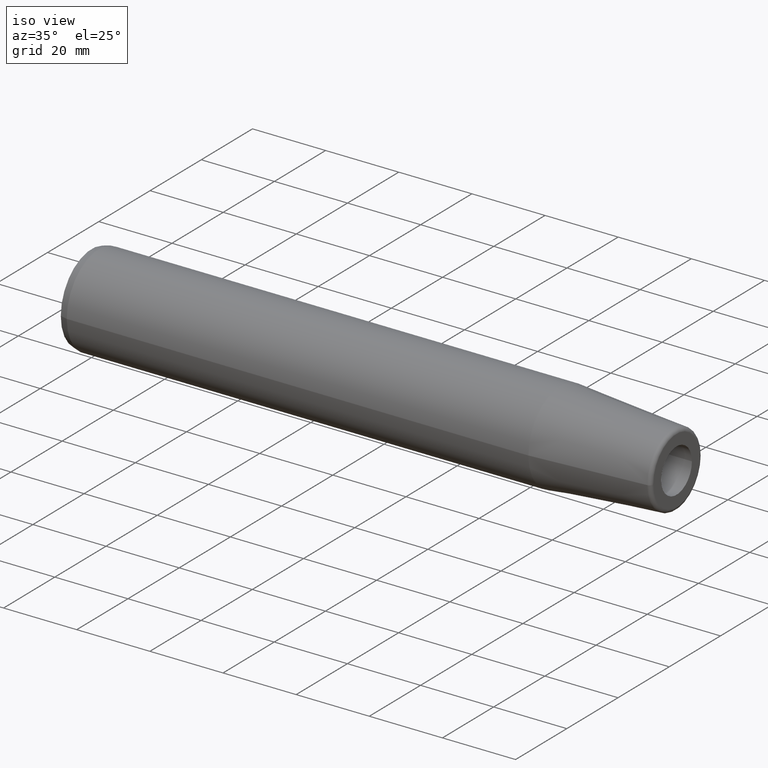
[diagram: clean part render]
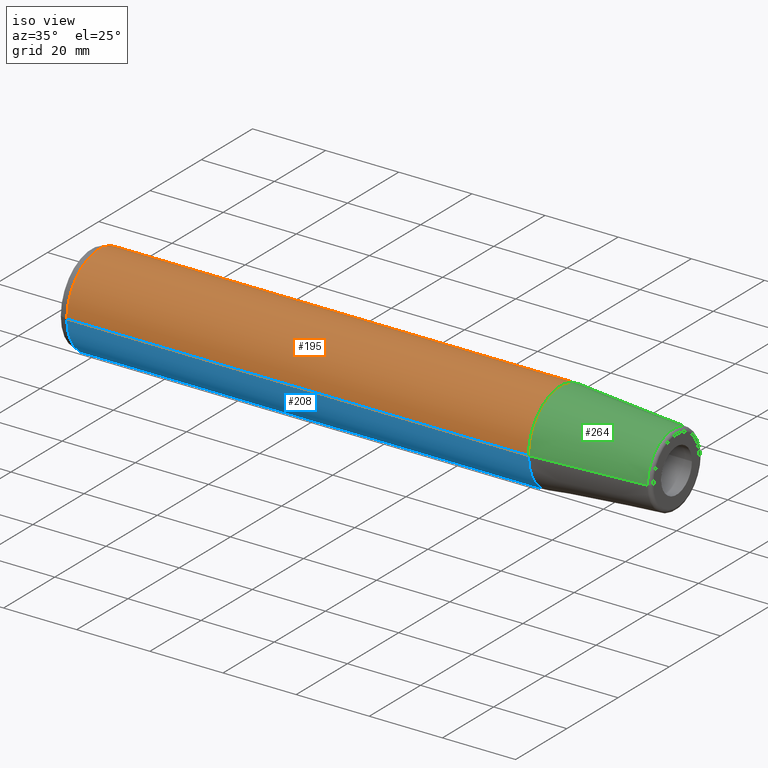
[diagram: same view with three faces highlighted in distinct colors, each labeled with its STEP entity id]
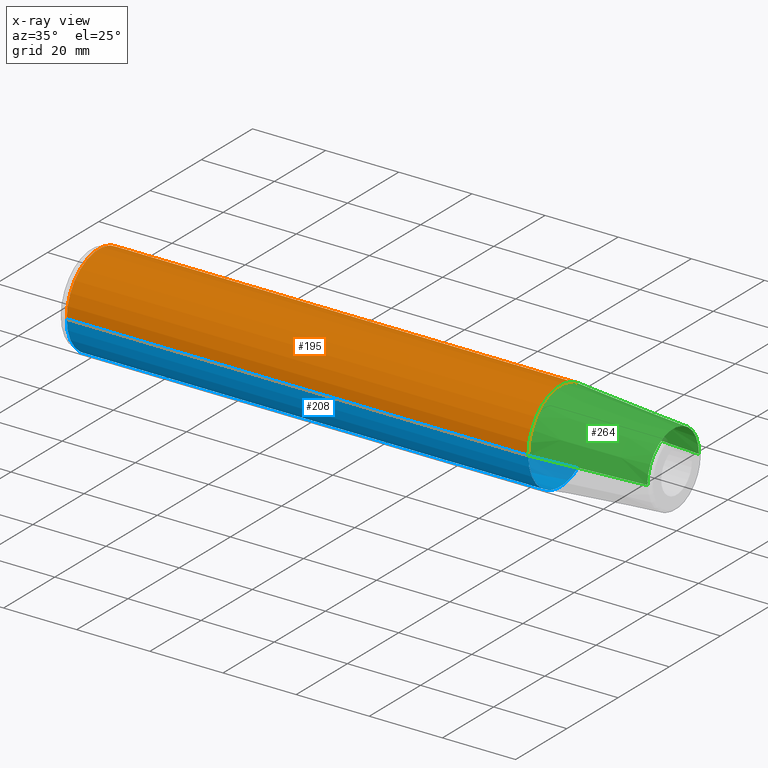
[diagram: x-ray of the same camera — body ghosted, the three highlighted faces saturated]
A machine part, iso view with three faces highlighted in distinct colors.
The next image is the same camera in x-ray (body ghosted, the three faces saturated) — at least one of them is partly hidden behind the body in this view.
Their STEP definitions:

[orange] entity #195 — the highlighted cylindrical surface (partial cylindrical patch) has radius 12.5 mm, axis along (1, 0, 0).
#19=CARTESIAN_POINT('',(2.E0,0.E0,0.E0));
#20=DIRECTION('',(-1.E0,0.E0,0.E0));
#21=DIRECTION('',(0.E0,-1.E0,0.E0));
#22=AXIS2_PLACEMENT_3D('',#19,#20,#21);
#24=CARTESIAN_POINT('',(1.282344881596E2,0.E0,0.E0));
#25=DIRECTION('',(1.E0,0.E0,0.E0));
#26=DIRECTION('',(0.E0,1.E0,0.E0));
#27=AXIS2_PLACEMENT_3D('',#24,#25,#26);
#34=DIRECTION('',(-1.E0,5.808591509788E-13,-2.075246914013E-11));
#35=VECTOR('',#34,1.262344881598E2);
#36=CARTESIAN_POINT('',(1.282344881596E2,-1.25E1,0.E0));
#37=LINE('',#36,#35);
#43=DIRECTION('',(-1.E0,-5.808591509788E-13,2.075246061163E-11));
#44=VECTOR('',#43,1.262344881598E2);
#45=CARTESIAN_POINT('',(1.282344881596E2,1.25E1,0.E0));
#46=LINE('',#45,#44);
#113=CARTESIAN_POINT('',(1.282344881596E2,1.25E1,0.E0));
#114=CARTESIAN_POINT('',(1.282344881596E2,-1.25E1,0.E0));
#115=VERTEX_POINT('',#113);
#116=VERTEX_POINT('',#114);
#129=CARTESIAN_POINT('',(2.E0,1.25E1,0.E0));
#130=CARTESIAN_POINT('',(2.E0,-1.25E1,0.E0));
#131=VERTEX_POINT('',#129);
#132=VERTEX_POINT('',#130);
#181=CARTESIAN_POINT('',(-8.E0,0.E0,0.E0));
#182=DIRECTION('',(1.E0,0.E0,0.E0));
#183=DIRECTION('',(0.E0,-1.E0,0.E0));
#184=AXIS2_PLACEMENT_3D('',#181,#182,#183);
#185=CYLINDRICAL_SURFACE('',#184,1.25E1);
#186=ORIENTED_EDGE('',*,*,#175,.T.);
#188=ORIENTED_EDGE('',*,*,#187,.F.);
#190=ORIENTED_EDGE('',*,*,#189,.T.);
#192=ORIENTED_EDGE('',*,*,#191,.T.);
#193=EDGE_LOOP('',(#186,#188,#190,#192));
#194=FACE_OUTER_BOUND('',#193,.F.);
#195=ADVANCED_FACE('',(#194),#185,.T.);
#23=CIRCLE('',#22,1.25E1);
#28=CIRCLE('',#27,1.25E1);
#175=EDGE_CURVE('',#132,#131,#23,.T.);
#187=EDGE_CURVE('',#115,#131,#46,.T.);
#189=EDGE_CURVE('',#115,#116,#28,.T.);
#191=EDGE_CURVE('',#116,#132,#37,.T.);

[blue] entity #208 — the highlighted cylindrical surface (partial cylindrical patch) has radius 12.5 mm, axis along (1, 0, 0).
#29=CARTESIAN_POINT('',(2.E0,0.E0,0.E0));
#30=DIRECTION('',(-1.E0,0.E0,0.E0));
#31=DIRECTION('',(0.E0,1.E0,0.E0));
#32=AXIS2_PLACEMENT_3D('',#29,#30,#31);
#34=DIRECTION('',(-1.E0,5.808591509788E-13,-2.075246914013E-11));
#35=VECTOR('',#34,1.262344881598E2);
#36=CARTESIAN_POINT('',(1.282344881596E2,-1.25E1,0.E0));
#37=LINE('',#36,#35);
#38=CARTESIAN_POINT('',(1.282344881596E2,0.E0,0.E0));
#39=DIRECTION('',(-1.E0,0.E0,0.E0));
#40=DIRECTION('',(0.E0,1.E0,0.E0));
#41=AXIS2_PLACEMENT_3D('',#38,#39,#40);
#43=DIRECTION('',(-1.E0,-5.808591509788E-13,2.075246061163E-11));
#44=VECTOR('',#43,1.262344881598E2);
#45=CARTESIAN_POINT('',(1.282344881596E2,1.25E1,0.E0));
#46=LINE('',#45,#44);
#113=CARTESIAN_POINT('',(1.282344881596E2,1.25E1,0.E0));
#114=CARTESIAN_POINT('',(1.282344881596E2,-1.25E1,0.E0));
#115=VERTEX_POINT('',#113);
#116=VERTEX_POINT('',#114);
#129=CARTESIAN_POINT('',(2.E0,1.25E1,0.E0));
#130=CARTESIAN_POINT('',(2.E0,-1.25E1,0.E0));
#131=VERTEX_POINT('',#129);
#132=VERTEX_POINT('',#130);
#196=CARTESIAN_POINT('',(-8.E0,0.E0,0.E0));
#197=DIRECTION('',(1.E0,0.E0,0.E0));
#198=DIRECTION('',(0.E0,-1.E0,0.E0));
#199=AXIS2_PLACEMENT_3D('',#196,#197,#198);
#200=CYLINDRICAL_SURFACE('',#199,1.25E1);
#201=ORIENTED_EDGE('',*,*,#161,.T.);
#202=ORIENTED_EDGE('',*,*,#191,.F.);
#204=ORIENTED_EDGE('',*,*,#203,.F.);
#205=ORIENTED_EDGE('',*,*,#187,.T.);
#206=EDGE_LOOP('',(#201,#202,#204,#205));
#207=FACE_OUTER_BOUND('',#206,.F.);
#208=ADVANCED_FACE('',(#207),#200,.T.);
#33=CIRCLE('',#32,1.25E1);
#42=CIRCLE('',#41,1.25E1);
#161=EDGE_CURVE('',#131,#132,#33,.T.);
#187=EDGE_CURVE('',#115,#131,#46,.T.);
#191=EDGE_CURVE('',#116,#132,#37,.T.);
#203=EDGE_CURVE('',#115,#116,#42,.T.);

[green] entity #264 — the highlighted conical surface has half-angle 4.5 deg.
#24=CARTESIAN_POINT('',(1.282344881596E2,0.E0,0.E0));
#25=DIRECTION('',(1.E0,0.E0,0.E0));
#26=DIRECTION('',(0.E0,1.E0,0.E0));
#27=AXIS2_PLACEMENT_3D('',#24,#25,#26);
#52=DIRECTION('',(-9.969173337331E-1,7.845909572785E-2,3.479333843952E-13));
#53=VECTOR('',#52,3.093934661630E1);
#54=CARTESIAN_POINT('',(1.590784590957E2,1.007252684207E1,-1.076330077068E-11));
#55=LINE('',#54,#53);
#56=DIRECTION('',(-9.969173337331E-1,-7.845909572785E-2,-3.479234170808E-13));
#57=VECTOR('',#56,3.093934661630E1);
#58=CARTESIAN_POINT('',(1.590784590957E2,-1.007252684207E1,1.076299238849E-11));
#59=LINE('',#58,#57);
#70=CARTESIAN_POINT('',(1.590784590957E2,0.E0,0.E0));
#71=DIRECTION('',(-1.E0,0.E0,0.E0));
#72=DIRECTION('',(0.E0,-1.E0,0.E0));
#73=AXIS2_PLACEMENT_3D('',#70,#71,#72);
#113=CARTESIAN_POINT('',(1.282344881596E2,1.25E1,0.E0));
#114=CARTESIAN_POINT('',(1.282344881596E2,-1.25E1,0.E0));
#115=VERTEX_POINT('',#113);
#116=VERTEX_POINT('',#114);
#133=CARTESIAN_POINT('',(1.590784590957E2,1.007252684207E1,0.E0));
#134=CARTESIAN_POINT('',(1.590784590957E2,-1.007252684207E1,0.E0));
#135=VERTEX_POINT('',#133);
#136=VERTEX_POINT('',#134);
#253=CARTESIAN_POINT('',(1.436564736276E2,0.E0,0.E0));
#254=DIRECTION('',(-1.E0,0.E0,0.E0));
#255=DIRECTION('',(0.E0,1.E0,0.E0));
#256=AXIS2_PLACEMENT_3D('',#253,#254,#255);
#257=CONICAL_SURFACE('',#256,1.128626342104E1,4.5E0);
#258=ORIENTED_EDGE('',*,*,#244,.F.);
#259=ORIENTED_EDGE('',*,*,#219,.T.);
#260=ORIENTED_EDGE('',*,*,#189,.F.);
#261=ORIENTED_EDGE('',*,*,#216,.F.);
#262=EDGE_LOOP('',(#258,#259,#260,#261));
#263=FACE_OUTER_BOUND('',#262,.F.);
#264=ADVANCED_FACE('',(#263),#257,.T.);
#28=CIRCLE('',#27,1.25E1);
#74=CIRCLE('',#73,1.007252684207E1);
#189=EDGE_CURVE('',#115,#116,#28,.T.);
#216=EDGE_CURVE('',#135,#115,#55,.T.);
#219=EDGE_CURVE('',#136,#116,#59,.T.);
#244=EDGE_CURVE('',#136,#135,#74,.T.);